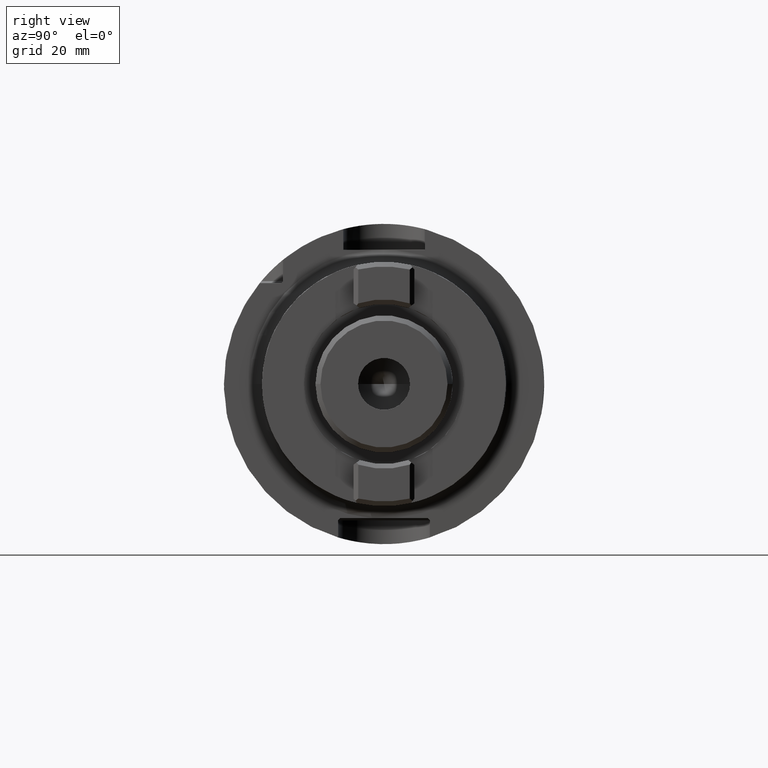
[diagram: clean part render]
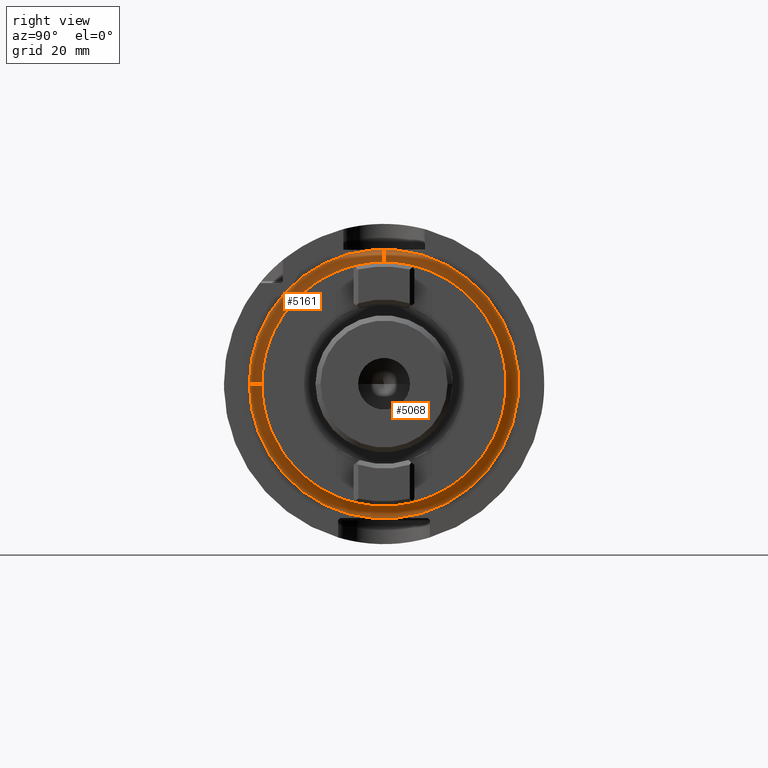
[diagram: same view with one multi-face feature highlighted, each face labeled with its STEP entity id]
A machine part, right view. The highlighted faces form ONE feature: a constant-radius fillet chain: 2 tangent blend faces with common blend radius 2.5 mm. The faces share edges in the B-rep.
Their STEP definitions:
[1] entity #5161 (Torus):
#1489=CARTESIAN_POINT('',(2.85E1,-2.65E1,5.234701561108E-14));
#1490=DIRECTION('',(0.E0,0.E0,-1.E0));
#1491=DIRECTION('',(-1.E0,0.E0,0.E0));
#1492=AXIS2_PLACEMENT_3D('',#1489,#1490,#1491);
#1549=CARTESIAN_POINT('',(2.6E1,0.E0,0.E0));
#1550=DIRECTION('',(1.E0,0.E0,0.E0));
#1551=DIRECTION('',(0.E0,-8.679468932983E-2,9.962262202453E-1));
#1552=AXIS2_PLACEMENT_3D('',#1549,#1550,#1551);
#1554=CARTESIAN_POINT('',(2.600200080062E1,-1.476311782435E-4,2.64E1));
#1555=CARTESIAN_POINT('',(2.600200074336E1,-2.559302131721E-1,2.64E1));
#1556=CARTESIAN_POINT('',(2.600168637145E1,-7.673295720597E-1,
2.640000076341E1));
#1557=CARTESIAN_POINT('',(2.600057320429E1,-1.534197675432E0,2.639999732808E1));
#1558=CARTESIAN_POINT('',(2.6E1,-2.044756277714E0,2.640000572554E1));
#1559=CARTESIAN_POINT('',(2.6E1,-2.299954183603E0,2.640000572554E1));
#1581=CARTESIAN_POINT('',(2.85E1,-1.481903872420E-4,2.649999999959E1));
#1582=DIRECTION('',(0.E0,-9.999999999844E-1,-5.592090084604E-6));
#1583=DIRECTION('',(-9.991996797504E-1,2.236836024608E-7,-3.999999983426E-2));
#1584=AXIS2_PLACEMENT_3D('',#1581,#1582,#1583);
#1602=CARTESIAN_POINT('',(2.85E1,0.E0,0.E0));
#1603=DIRECTION('',(1.E0,0.E0,0.E0));
#1604=DIRECTION('',(0.E0,-1.707606123452E-6,9.999999999985E-1));
#1605=AXIS2_PLACEMENT_3D('',#1602,#1603,#1604);
#3426=CARTESIAN_POINT('',(2.85E1,-4.098254696284E-5,2.399999999997E1));
#3428=VERTEX_POINT('',#3426);
#3487=CARTESIAN_POINT('',(2.85E1,-2.4E1,-2.608392199224E-12));
#3488=VERTEX_POINT('',#3487);
#3504=CARTESIAN_POINT('',(2.6E1,-2.65E1,0.E0));
#3506=VERTEX_POINT('',#3504);
#3508=CARTESIAN_POINT('',(2.6E1,-2.300059267241E0,2.639999483650E1));
#3509=VERTEX_POINT('',#3508);
#3514=VERTEX_POINT('',#1554);
#5148=CARTESIAN_POINT('',(2.85E1,0.E0,0.E0));
#5149=DIRECTION('',(1.E0,0.E0,0.E0));
#5150=DIRECTION('',(0.E0,1.485959642860E-3,-9.999988959614E-1));
#5151=AXIS2_PLACEMENT_3D('',#5148,#5149,#5150);
#5152=TOROIDAL_SURFACE('',#5151,2.65E1,2.5E0);
#5154=ORIENTED_EDGE('',*,*,#5153,.T.);
#5155=ORIENTED_EDGE('',*,*,#5054,.F.);
#5156=ORIENTED_EDGE('',*,*,#5112,.F.);
#5157=ORIENTED_EDGE('',*,*,#5122,.F.);
#5158=ORIENTED_EDGE('',*,*,#5060,.T.);
#5159=EDGE_LOOP('',(#5154,#5155,#5156,#5157,#5158));
#5160=FACE_OUTER_BOUND('',#5159,.F.);
#5161=ADVANCED_FACE('',(#5160),#5152,.F.);
#1493=CIRCLE('',#1492,2.5E0);
#1553=CIRCLE('',#1552,2.65E1);
#1560=B_SPLINE_CURVE_WITH_KNOTS('',3,(#1554,#1555,#1556,#1557,#1558,#1559),
.UNSPECIFIED.,.F.,.F.,(4,1,1,4),(0.E0,3.333333333333E-1,6.666666666667E-1,1.E0),
.UNSPECIFIED.);
#1585=CIRCLE('',#1584,2.5E0);
#1606=CIRCLE('',#1605,2.4E1);
#5054=EDGE_CURVE('',#3506,#3488,#1493,.T.);
#5060=EDGE_CURVE('',#3514,#3428,#1585,.T.);
#5112=EDGE_CURVE('',#3509,#3506,#1553,.T.);
#5122=EDGE_CURVE('',#3514,#3509,#1560,.T.);
#5153=EDGE_CURVE('',#3428,#3488,#1606,.T.);
[2] entity #5068 (Torus):
#1482=CARTESIAN_POINT('',(2.6E1,2.299955148418E0,-2.640000572529E1));
#1483=CARTESIAN_POINT('',(2.6E1,1.788950373617E0,-2.640000572529E1));
#1484=CARTESIAN_POINT('',(2.600210659880E1,7.669320984684E-1,
-2.639999736701E1));
#1485=CARTESIAN_POINT('',(2.600210659835E1,-7.669181017006E-1,
-2.640000062755E1));
#1486=CARTESIAN_POINT('',(2.6E1,-1.788993079034E0,-2.640000029106E1));
#1487=CARTESIAN_POINT('',(2.6E1,-2.299997764446E0,-2.640000029106E1));
#1489=CARTESIAN_POINT('',(2.85E1,-2.65E1,5.234701561108E-14));
#1490=DIRECTION('',(0.E0,0.E0,-1.E0));
#1491=DIRECTION('',(-1.E0,0.E0,0.E0));
#1492=AXIS2_PLACEMENT_3D('',#1489,#1490,#1491);
#1494=CARTESIAN_POINT('',(2.85E1,0.E0,0.E0));
#1495=DIRECTION('',(1.E0,0.E0,0.E0));
#1496=DIRECTION('',(0.E0,-1.E0,0.E0));
#1497=AXIS2_PLACEMENT_3D('',#1494,#1495,#1496);
#1499=CARTESIAN_POINT('',(2.6E1,0.E0,0.E0));
#1500=DIRECTION('',(-1.E0,0.E0,0.E0));
#1501=DIRECTION('',(0.E0,8.679258221208E-2,9.962264038224E-1));
#1502=AXIS2_PLACEMENT_3D('',#1499,#1500,#1501);
#1520=CARTESIAN_POINT('',(2.6E1,0.E0,0.E0));
#1521=DIRECTION('',(1.E0,0.E0,0.E0));
#1522=DIRECTION('',(0.E0,-1.E0,0.E0));
#1523=AXIS2_PLACEMENT_3D('',#1520,#1521,#1522);
#1554=CARTESIAN_POINT('',(2.600200080062E1,-1.476311782435E-4,2.64E1));
#1574=CARTESIAN_POINT('',(2.6E1,2.299997804791E0,2.640000029157E1));
#1575=CARTESIAN_POINT('',(2.6E1,2.044846814993E0,2.640000029157E1));
#1576=CARTESIAN_POINT('',(2.600057305756E1,1.534263161262E0,2.639999986393E1));
#1577=CARTESIAN_POINT('',(2.600168661724E1,7.671725744315E-1,2.640000003888E1));
#1578=CARTESIAN_POINT('',(2.600200085789E1,2.556815879933E-1,2.64E1));
#1579=CARTESIAN_POINT('',(2.600200080062E1,-1.476311782435E-4,2.64E1));
#1581=CARTESIAN_POINT('',(2.85E1,-1.481903872420E-4,2.649999999959E1));
#1582=DIRECTION('',(0.E0,-9.999999999844E-1,-5.592090084604E-6));
#1583=DIRECTION('',(-9.991996797504E-1,2.236836024608E-7,-3.999999983426E-2));
#1584=AXIS2_PLACEMENT_3D('',#1581,#1582,#1583);
#1607=CARTESIAN_POINT('',(2.85E1,0.E0,0.E0));
#1608=DIRECTION('',(1.E0,0.E0,0.E0));
#1609=DIRECTION('',(0.E0,1.E0,0.E0));
#1610=AXIS2_PLACEMENT_3D('',#1607,#1608,#1609);
#3425=CARTESIAN_POINT('',(2.85E1,2.4E1,0.E0));
#3426=CARTESIAN_POINT('',(2.85E1,-4.098254696284E-5,2.399999999997E1));
#3427=VERTEX_POINT('',#3425);
#3428=VERTEX_POINT('',#3426);
#3487=CARTESIAN_POINT('',(2.85E1,-2.4E1,-2.608392199224E-12));
#3488=VERTEX_POINT('',#3487);
#3504=CARTESIAN_POINT('',(2.6E1,-2.65E1,0.E0));
#3505=CARTESIAN_POINT('',(2.6E1,-2.300003290871E0,-2.639999971330E1));
#3506=VERTEX_POINT('',#3504);
#3507=VERTEX_POINT('',#3505);
#3510=CARTESIAN_POINT('',(2.6E1,2.300003428620E0,2.639999970129E1));
#3511=CARTESIAN_POINT('',(2.6E1,2.300062131321E0,-2.639999458697E1));
#3512=VERTEX_POINT('',#3510);
#3513=VERTEX_POINT('',#3511);
#3514=VERTEX_POINT('',#1554);
#5046=CARTESIAN_POINT('',(2.85E1,0.E0,0.E0));
#5047=DIRECTION('',(1.E0,0.E0,0.E0));
#5048=DIRECTION('',(0.E0,9.999948687983E-1,-3.203494520730E-3));
#5049=AXIS2_PLACEMENT_3D('',#5046,#5047,#5048);
#5050=TOROIDAL_SURFACE('',#5049,2.65E1,2.5E0);
#5051=ORIENTED_EDGE('',*,*,#5020,.T.);
#5053=ORIENTED_EDGE('',*,*,#5052,.F.);
#5055=ORIENTED_EDGE('',*,*,#5054,.T.);
#5057=ORIENTED_EDGE('',*,*,#5056,.T.);
#5059=ORIENTED_EDGE('',*,*,#5058,.T.);
#5061=ORIENTED_EDGE('',*,*,#5060,.F.);
#5063=ORIENTED_EDGE('',*,*,#5062,.F.);
#5065=ORIENTED_EDGE('',*,*,#5064,.T.);
#5066=EDGE_LOOP('',(#5051,#5053,#5055,#5057,#5059,#5061,#5063,#5065));
#5067=FACE_OUTER_BOUND('',#5066,.F.);
#5068=ADVANCED_FACE('',(#5067),#5050,.F.);
#1488=B_SPLINE_CURVE_WITH_KNOTS('',3,(#1482,#1483,#1484,#1485,#1486,#1487),
.UNSPECIFIED.,.F.,.F.,(4,1,1,4),(0.E0,3.333333333333E-1,6.666666666667E-1,1.E0),
.UNSPECIFIED.);
#1493=CIRCLE('',#1492,2.5E0);
#1498=CIRCLE('',#1497,2.4E1);
#1503=CIRCLE('',#1502,2.65E1);
#1524=CIRCLE('',#1523,2.65E1);
#1580=B_SPLINE_CURVE_WITH_KNOTS('',3,(#1574,#1575,#1576,#1577,#1578,#1579),
.UNSPECIFIED.,.F.,.F.,(4,1,1,4),(0.E0,3.333333333333E-1,6.666666666667E-1,1.E0),
.UNSPECIFIED.);
#1585=CIRCLE('',#1584,2.5E0);
#1611=CIRCLE('',#1610,2.4E1);
#5020=EDGE_CURVE('',#3513,#3507,#1488,.T.);
#5052=EDGE_CURVE('',#3506,#3507,#1524,.T.);
#5054=EDGE_CURVE('',#3506,#3488,#1493,.T.);
#5056=EDGE_CURVE('',#3488,#3427,#1498,.T.);
#5058=EDGE_CURVE('',#3427,#3428,#1611,.T.);
#5060=EDGE_CURVE('',#3514,#3428,#1585,.T.);
#5062=EDGE_CURVE('',#3512,#3514,#1580,.T.);
#5064=EDGE_CURVE('',#3512,#3513,#1503,.T.);